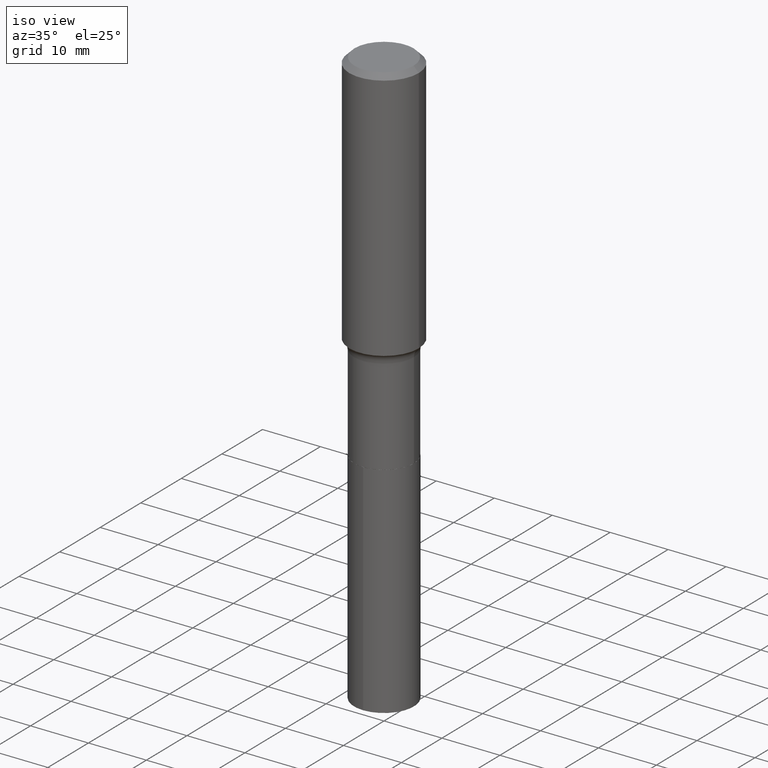
[diagram: clean part render]
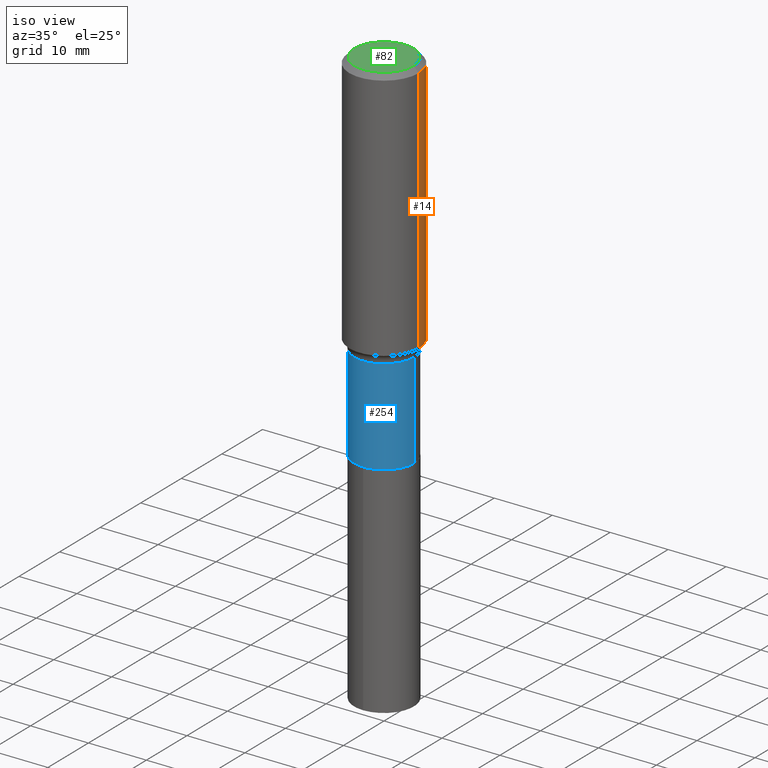
[diagram: same view with three faces highlighted in distinct colors, each labeled with its STEP entity id]
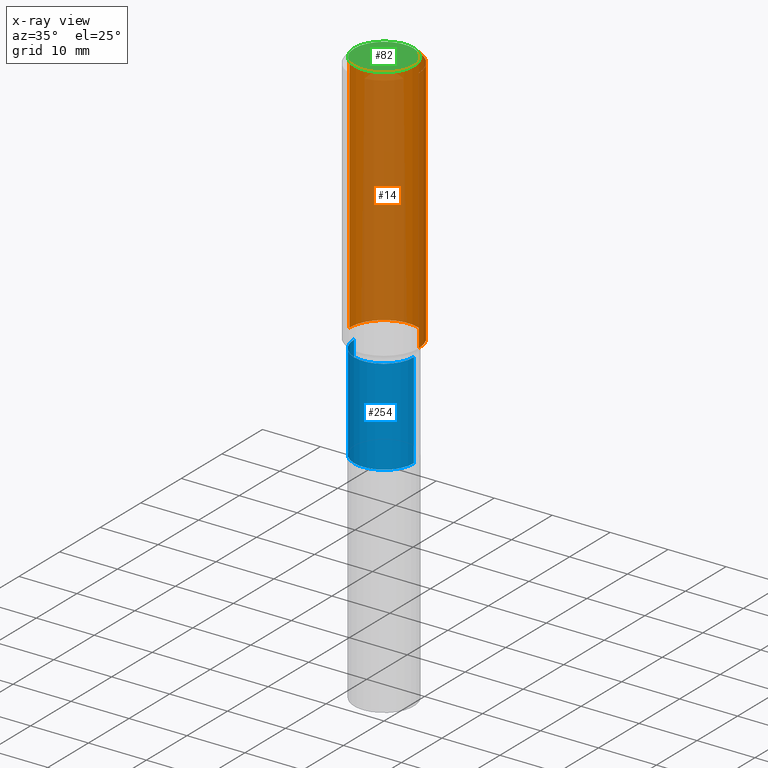
[diagram: x-ray of the same camera — body ghosted, the three highlighted faces saturated]
A machine part, iso view with three faces highlighted in distinct colors.
The next image is the same camera in x-ray (body ghosted, the three faces saturated) — at least one of them is partly hidden behind the body in this view.
Their STEP definitions:

[orange] entity #14 — the highlighted cylindrical surface (partial cylindrical patch) has radius 5.9995 mm, axis along (-0, 0, 1).
#6 = AXIS2_PLACEMENT_3D ( 'NONE', #224, #479, #151 ) ;
#14 = ADVANCED_FACE ( 'NONE', ( #132 ), #121, .T. ) ;
#26 = VERTEX_POINT ( 'NONE', #417 ) ;
#32 = ORIENTED_EDGE ( 'NONE', *, *, #439, .T. ) ;
#37 = DIRECTION ( 'NONE',  ( -2.445468806185136597E-29, 3.491481338843145583E-15, 1.000000000000000000 ) ) ;
#42 = VECTOR ( 'NONE', #198, 39.37007874015748143 ) ;
#44 = CARTESIAN_POINT ( 'NONE',  ( -0.2362000000000002153, -4.346665305163778709E-15, -1.725619203517045674 ) ) ;
#94 = EDGE_LOOP ( 'NONE', ( #32, #327, #230, #248 ) ) ;
#109 = VERTEX_POINT ( 'NONE', #270 ) ;
#121 = CYLINDRICAL_SURFACE ( 'NONE', #123, 0.2362000000000001321 ) ;
#123 = AXIS2_PLACEMENT_3D ( 'NONE', #301, #37, #201 ) ;
#128 = LINE ( 'NONE', #452, #42 ) ;
#132 = FACE_OUTER_BOUND ( 'NONE', #94, .T. ) ;
#134 = CIRCLE ( 'NONE', #6, 0.2361999999999999933 ) ;
#151 = DIRECTION ( 'NONE',  ( 1.000000000000000000, -6.982962677686266711E-15, 0.000000000000000000 ) ) ;
#153 = EDGE_CURVE ( 'NONE', #109, #476, #128, .T. ) ;
#166 = CARTESIAN_POINT ( 'NONE',  ( 4.219947933554975725E-29, -6.024967247029136681E-15, -1.725619203517045674 ) ) ;
#168 = VERTEX_POINT ( 'NONE', #44 ) ;
#178 = DIRECTION ( 'NONE',  ( -2.445468806185136877E-29, 3.491481338843145188E-15, 1.000000000000000000 ) ) ;
#198 = DIRECTION ( 'NONE',  ( -2.445468806185136877E-29, 3.491481338843145188E-15, 1.000000000000000000 ) ) ;
#201 = DIRECTION ( 'NONE',  ( 1.000000000000000000, -6.982962677686266711E-15, 4.876176775795936353E-29 ) ) ;
#224 = CARTESIAN_POINT ( 'NONE',  ( 8.664295980313996991E-31, -1.237031838352134818E-16, -0.03543000000000023908 ) ) ;
#230 = ORIENTED_EDGE ( 'NONE', *, *, #388, .F. ) ;
#233 = DIRECTION ( 'NONE',  ( -2.445468806185136597E-29, 3.491481338843145583E-15, 1.000000000000000000 ) ) ;
#244 = CARTESIAN_POINT ( 'NONE',  ( 0.2361999999999999933, -1.773078968304709711E-15, -0.03543000000000023908 ) ) ;
#248 = ORIENTED_EDGE ( 'NONE', *, *, #153, .F. ) ;
#270 = CARTESIAN_POINT ( 'NONE',  ( 0.2362000000000002153, -7.674343031498633206E-15, -1.725619203517045674 ) ) ;
#301 = CARTESIAN_POINT ( 'NONE',  ( 0.000000000000000000, 0.000000000000000000, 0.000000000000000000 ) ) ;
#327 = ORIENTED_EDGE ( 'NONE', *, *, #343, .T. ) ;
#330 = VECTOR ( 'NONE', #178, 39.37007874015748143 ) ;
#340 = DIRECTION ( 'NONE',  ( 1.000000000000000000, -6.982962677686265922E-15, 0.000000000000000000 ) ) ;
#343 = EDGE_CURVE ( 'NONE', #168, #26, #396, .T. ) ;
#359 = CARTESIAN_POINT ( 'NONE',  ( -0.2362000000000001321, 1.678301941865357577E-15, -1.161852468318209457E-29 ) ) ;
#388 = EDGE_CURVE ( 'NONE', #476, #26, #134, .T. ) ;
#396 = LINE ( 'NONE', #359, #330 ) ;
#399 = CIRCLE ( 'NONE', #478, 0.2362000000000002431 ) ;
#417 = CARTESIAN_POINT ( 'NONE',  ( -0.2361999999999999933, -1.396033273566817159E-15, -0.03543000000000023908 ) ) ;
#439 = EDGE_CURVE ( 'NONE', #109, #168, #399, .T. ) ;
#452 = CARTESIAN_POINT ( 'NONE',  ( 0.2362000000000001321, -1.649375784469497117E-15, 1.151752954443000789E-29 ) ) ;
#476 = VERTEX_POINT ( 'NONE', #244 ) ;
#478 = AXIS2_PLACEMENT_3D ( 'NONE', #166, #233, #340 ) ;
#479 = DIRECTION ( 'NONE',  ( -2.445468806185136597E-29, 3.491481338843145583E-15, 1.000000000000000000 ) ) ;

[blue] entity #254 — the highlighted cylindrical surface (edge-blend (fillet) strip) has radius 5.1587 mm, axis along (-0, 0, 1).
#1 = EDGE_CURVE ( 'NONE', #73, #65, #165, .T. ) ;
#23 = VECTOR ( 'NONE', #489, 39.37007874015748143 ) ;
#36 = CARTESIAN_POINT ( 'NONE',  ( 4.375921881787682519E-29, -6.247656707725923885E-15, -1.789399999999999880 ) ) ;
#52 = DIRECTION ( 'NONE',  ( 1.000000000000000000, -6.982962677686265922E-15, 0.000000000000000000 ) ) ;
#65 = VERTEX_POINT ( 'NONE', #403 ) ;
#69 = DIRECTION ( 'NONE',  ( 1.000000000000000000, -6.982962677686262766E-15, 0.000000000000000000 ) ) ;
#73 = VERTEX_POINT ( 'NONE', #328 ) ;
#81 = DIRECTION ( 'NONE',  ( -2.445468806185136877E-29, 3.491481338843145188E-15, 1.000000000000000000 ) ) ;
#100 = AXIS2_PLACEMENT_3D ( 'NONE', #36, #137, #52 ) ;
#133 = CIRCLE ( 'NONE', #443, 0.2031000000000000583 ) ;
#137 = DIRECTION ( 'NONE',  ( -2.445468806185136597E-29, 3.491481338843145583E-15, 1.000000000000000000 ) ) ;
#140 = EDGE_CURVE ( 'NONE', #73, #221, #133, .T. ) ;
#165 = LINE ( 'NONE', #352, #23 ) ;
#188 = CARTESIAN_POINT ( 'NONE',  ( 5.967922074614207358E-29, -8.520611059312812251E-15, -2.440399999999999903 ) ) ;
#207 = CARTESIAN_POINT ( 'NONE',  ( 0.2031000000000000583, -9.938850779150892237E-15, -2.440399999999999903 ) ) ;
#221 = VERTEX_POINT ( 'NONE', #207 ) ;
#223 = ORIENTED_EDGE ( 'NONE', *, *, #140, .T. ) ;
#237 = DIRECTION ( 'NONE',  ( -2.445468806185136597E-29, 3.491481338843145583E-15, 1.000000000000000000 ) ) ;
#239 = FACE_OUTER_BOUND ( 'NONE', #465, .T. ) ;
#241 = EDGE_CURVE ( 'NONE', #221, #390, #341, .T. ) ;
#253 = AXIS2_PLACEMENT_3D ( 'NONE', #307, #237, #339 ) ;
#254 = ADVANCED_FACE ( 'NONE', ( #239 ), #265, .T. ) ;
#262 = EDGE_CURVE ( 'NONE', #65, #390, #458, .T. ) ;
#265 = CYLINDRICAL_SURFACE ( 'NONE', #253, 0.2031000000000000028 ) ;
#307 = CARTESIAN_POINT ( 'NONE',  ( 0.000000000000000000, 0.000000000000000000, 0.000000000000000000 ) ) ;
#328 = CARTESIAN_POINT ( 'NONE',  ( -0.2031000000000000583, -5.941021587190602993E-15, -2.440399999999999903 ) ) ;
#339 = DIRECTION ( 'NONE',  ( 1.000000000000000000, -6.982962677686266711E-15, 4.876176775795935793E-29 ) ) ;
#341 = LINE ( 'NONE', #351, #467 ) ;
#351 = CARTESIAN_POINT ( 'NONE',  ( 0.2031000000000000028, -1.418239719838080775E-15, 9.903515031641546145E-30 ) ) ;
#352 = CARTESIAN_POINT ( 'NONE',  ( -0.2031000000000000028, 1.443112296328763497E-15, -9.990357168307714203E-30 ) ) ;
#365 = ORIENTED_EDGE ( 'NONE', *, *, #241, .T. ) ;
#390 = VERTEX_POINT ( 'NONE', #415 ) ;
#398 = ORIENTED_EDGE ( 'NONE', *, *, #262, .F. ) ;
#403 = CARTESIAN_POINT ( 'NONE',  ( -0.2030999999999999750, -5.941021587190603782E-15, -1.789399999999999880 ) ) ;
#404 = DIRECTION ( 'NONE',  ( -2.445468806185136597E-29, 3.491481338843145583E-15, 1.000000000000000000 ) ) ;
#405 = ORIENTED_EDGE ( 'NONE', *, *, #1, .F. ) ;
#415 = CARTESIAN_POINT ( 'NONE',  ( 0.2030999999999999750, -7.665896427564004661E-15, -1.789399999999999880 ) ) ;
#443 = AXIS2_PLACEMENT_3D ( 'NONE', #188, #404, #69 ) ;
#458 = CIRCLE ( 'NONE', #100, 0.2030999999999999750 ) ;
#465 = EDGE_LOOP ( 'NONE', ( #405, #223, #365, #398 ) ) ;
#467 = VECTOR ( 'NONE', #81, 39.37007874015748143 ) ;
#489 = DIRECTION ( 'NONE',  ( -2.445468806185136877E-29, 3.491481338843145188E-15, 1.000000000000000000 ) ) ;

[green] entity #82 — the highlighted planar face has unit normal (0, -0, -1).
#4 = CARTESIAN_POINT ( 'NONE',  ( -5.008488096090115757E-47, 7.150793614331959538E-33, 2.048068690724057264E-18 ) ) ;
#8 = DIRECTION ( 'NONE',  ( -2.445468806185136597E-29, 3.491481338843145583E-15, 1.000000000000000000 ) ) ;
#20 = CARTESIAN_POINT ( 'NONE',  ( -0.2007700000000000040, 1.463821008716676943E-15, 4.096137381438094301E-18 ) ) ;
#31 = CARTESIAN_POINT ( 'NONE',  ( 0.2007700000000000040, -1.560767496960719869E-15, 4.096137381458473721E-18 ) ) ;
#79 = AXIS2_PLACEMENT_3D ( 'NONE', #138, #243, #274 ) ;
#82 = ADVANCED_FACE ( 'NONE', ( #189 ), #492, .F. ) ;
#97 = DIRECTION ( 'NONE',  ( 1.000000000000000000, -6.982962677686266711E-15, 4.876140833081945105E-29 ) ) ;
#138 = CARTESIAN_POINT ( 'NONE',  ( -1.001697619218023151E-46, 1.430158722866391908E-32, 4.096137381448114529E-18 ) ) ;
#139 = VERTEX_POINT ( 'NONE', #20 ) ;
#169 = AXIS2_PLACEMENT_3D ( 'NONE', #4, #414, #172 ) ;
#172 = DIRECTION ( 'NONE',  ( -1.000000000000000000, 6.982962677686265922E-15, -4.876176775795935793E-29 ) ) ;
#186 = ORIENTED_EDGE ( 'NONE', *, *, #289, .T. ) ;
#189 = FACE_OUTER_BOUND ( 'NONE', #215, .T. ) ;
#215 = EDGE_LOOP ( 'NONE', ( #226, #186 ) ) ;
#226 = ORIENTED_EDGE ( 'NONE', *, *, #335, .T. ) ;
#242 = VERTEX_POINT ( 'NONE', #31 ) ;
#243 = DIRECTION ( 'NONE',  ( -2.445468806185136597E-29, 3.491481338843145583E-15, 1.000000000000000000 ) ) ;
#258 = CIRCLE ( 'NONE', #79, 0.2007700000000000040 ) ;
#274 = DIRECTION ( 'NONE',  ( 1.000000000000000000, -6.982962677686266711E-15, 4.876140833081945105E-29 ) ) ;
#289 = EDGE_CURVE ( 'NONE', #242, #139, #258, .T. ) ;
#335 = EDGE_CURVE ( 'NONE', #139, #242, #430, .T. ) ;
#355 = CARTESIAN_POINT ( 'NONE',  ( -1.001697619218023151E-46, 1.430158722866391908E-32, 4.096137381448114529E-18 ) ) ;
#414 = DIRECTION ( 'NONE',  ( 2.438088387897960049E-29, -3.491481338843145188E-15, -1.000000000000000000 ) ) ;
#430 = CIRCLE ( 'NONE', #444, 0.2007700000000000040 ) ;
#444 = AXIS2_PLACEMENT_3D ( 'NONE', #355, #8, #97 ) ;
#492 = PLANE ( 'NONE',  #169 ) ;